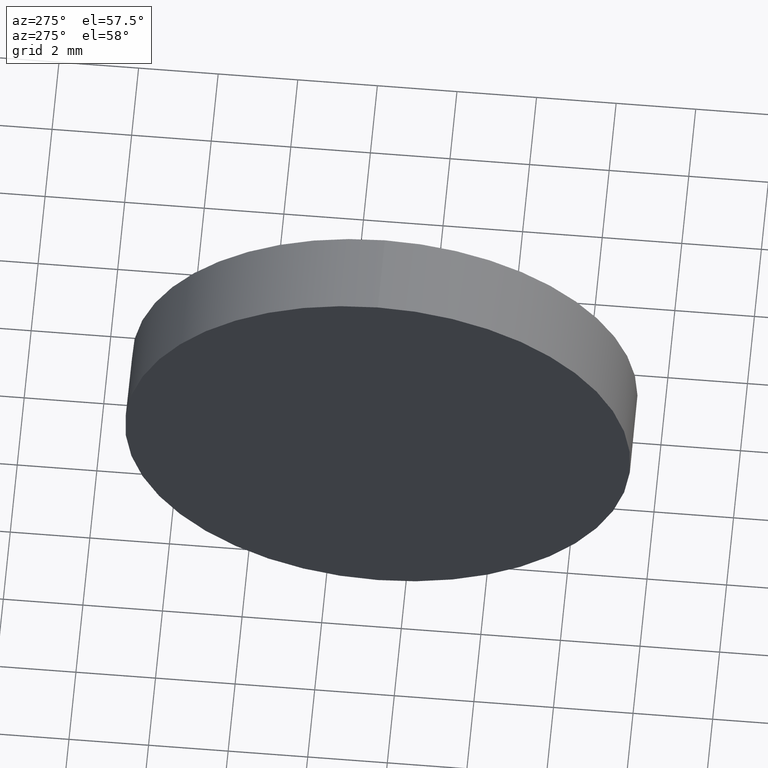
[diagram: clean part render]
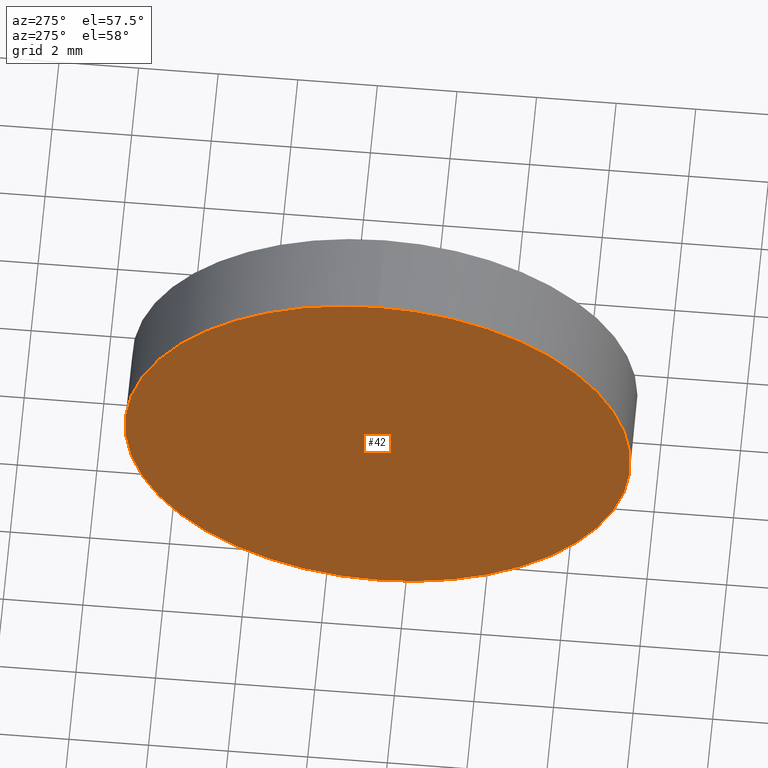
[diagram: same view with one face highlighted and labeled with its STEP entity id]
A machine part, auxiliary view. The second image highlights one B-rep face of the part: STEP entity #42.
In plain terms, the highlighted planar face has unit normal (1, 0, 0).
Its self-contained STEP definition (entity closure, byte-faithful):
#4 = EDGE_CURVE ( 'NONE', #27, #70, #67, .T. ) ;
#12 = AXIS2_PLACEMENT_3D ( 'NONE', #111, #75, #60 ) ;
#27 = VERTEX_POINT ( 'NONE', #149 ) ;
#30 = PLANE ( 'NONE',  #38 ) ;
#38 = AXIS2_PLACEMENT_3D ( 'NONE', #135, #112, #59 ) ;
#39 = EDGE_LOOP ( 'NONE', ( #74, #144 ) ) ;
#42 = ADVANCED_FACE ( 'NONE', ( #101 ), #30, .F. ) ;
#43 = DIRECTION ( 'NONE',  ( -1.000000000000000000, -0.0000000000000000000, -0.0000000000000000000 ) ) ;
#59 = DIRECTION ( 'NONE',  ( 0.0000000000000000000, 0.0000000000000000000, -1.000000000000000000 ) ) ;
#60 = DIRECTION ( 'NONE',  ( 0.0000000000000000000, 0.0000000000000000000, 1.000000000000000000 ) ) ;
#67 = CIRCLE ( 'NONE', #12, 6.350000000000001400 ) ;
#70 = VERTEX_POINT ( 'NONE', #138 ) ;
#71 = EDGE_CURVE ( 'NONE', #70, #27, #117, .T. ) ;
#74 = ORIENTED_EDGE ( 'NONE', *, *, #4, .T. ) ;
#75 = DIRECTION ( 'NONE',  ( -1.000000000000000000, -0.0000000000000000000, -0.0000000000000000000 ) ) ;
#78 = DIRECTION ( 'NONE',  ( 0.0000000000000000000, 0.0000000000000000000, 1.000000000000000000 ) ) ;
#101 = FACE_OUTER_BOUND ( 'NONE', #39, .T. ) ;
#111 = CARTESIAN_POINT ( 'NONE',  ( 367.2092935992750400, 34.69530442998001300, 0.0000000000000000000 ) ) ;
#112 = DIRECTION ( 'NONE',  ( 1.000000000000000000, 0.0000000000000000000, 0.0000000000000000000 ) ) ;
#117 = CIRCLE ( 'NONE', #137, 6.350000000000001400 ) ;
#135 = CARTESIAN_POINT ( 'NONE',  ( 367.2092935992750400, 34.69530442998001300, 0.0000000000000000000 ) ) ;
#137 = AXIS2_PLACEMENT_3D ( 'NONE', #165, #43, #78 ) ;
#138 = CARTESIAN_POINT ( 'NONE',  ( 367.2092935992750400, 34.69530442998001300, -6.350000000000001400 ) ) ;
#144 = ORIENTED_EDGE ( 'NONE', *, *, #71, .T. ) ;
#149 = CARTESIAN_POINT ( 'NONE',  ( 367.2092935992750400, 34.69530442998001300, 6.350000000000001400 ) ) ;
#165 = CARTESIAN_POINT ( 'NONE',  ( 367.2092935992750400, 34.69530442998001300, 0.0000000000000000000 ) ) ;